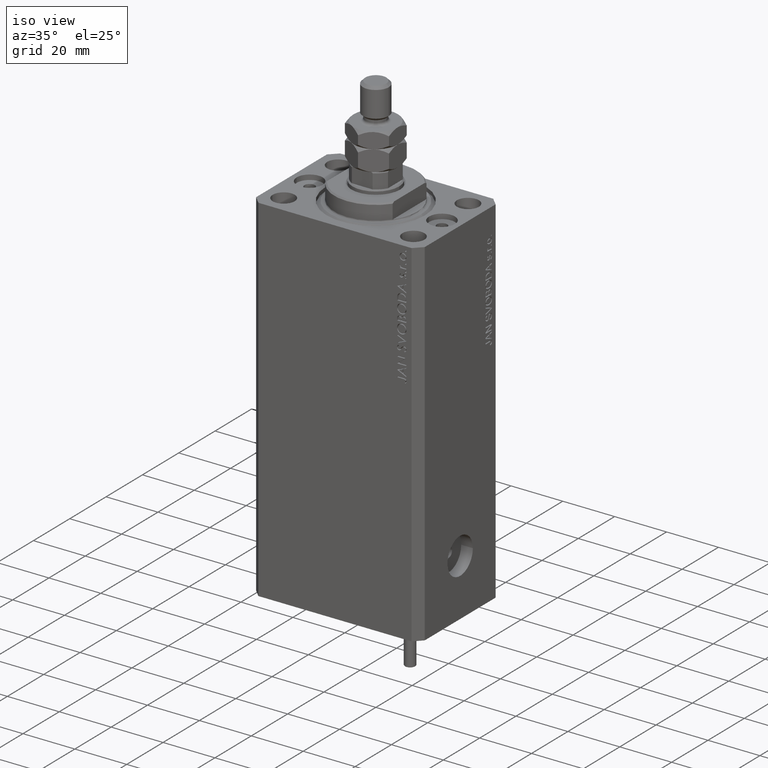
[diagram: clean part render]
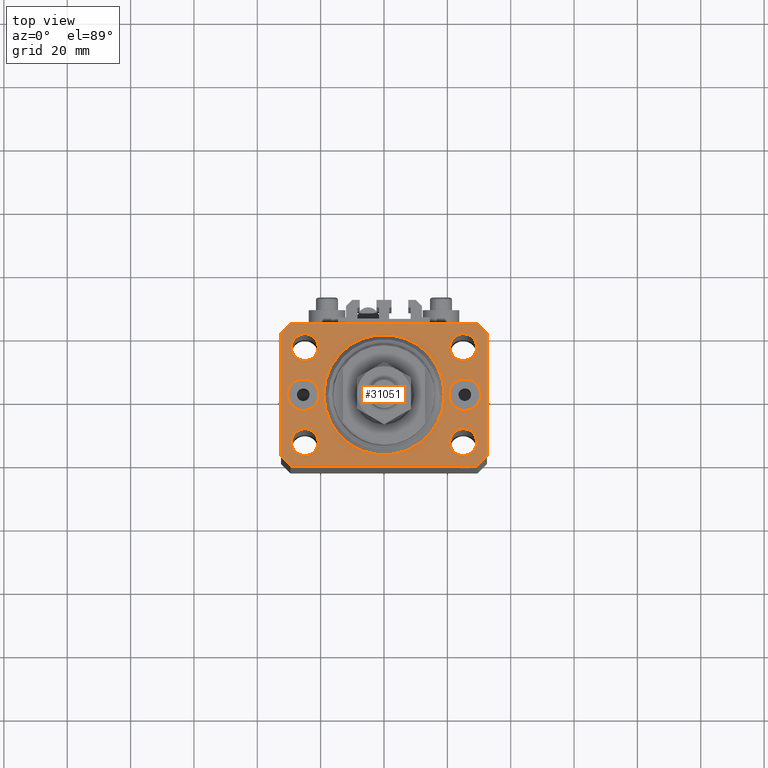
[diagram: tour spotlight — one face highlighted and labeled with its STEP entity id]
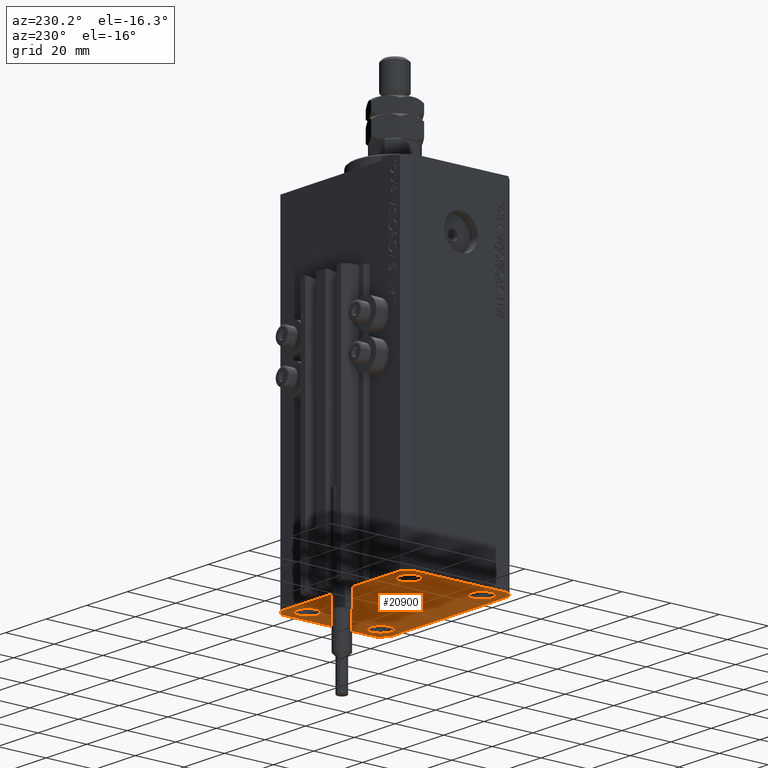
[diagram: tour spotlight — one face highlighted and labeled with its STEP entity id]
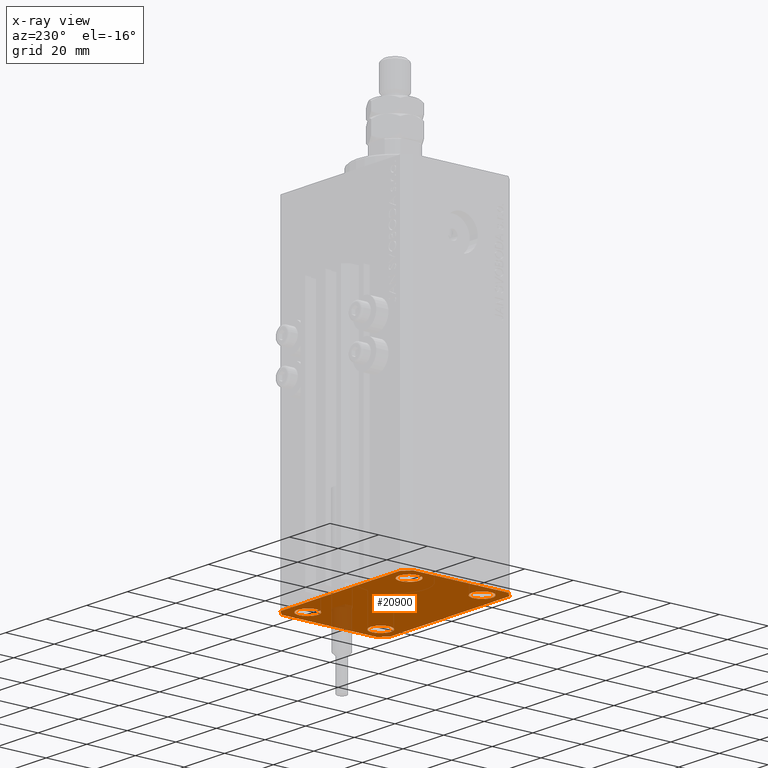
[diagram: x-ray of the same camera — body ghosted, this tour face saturated]
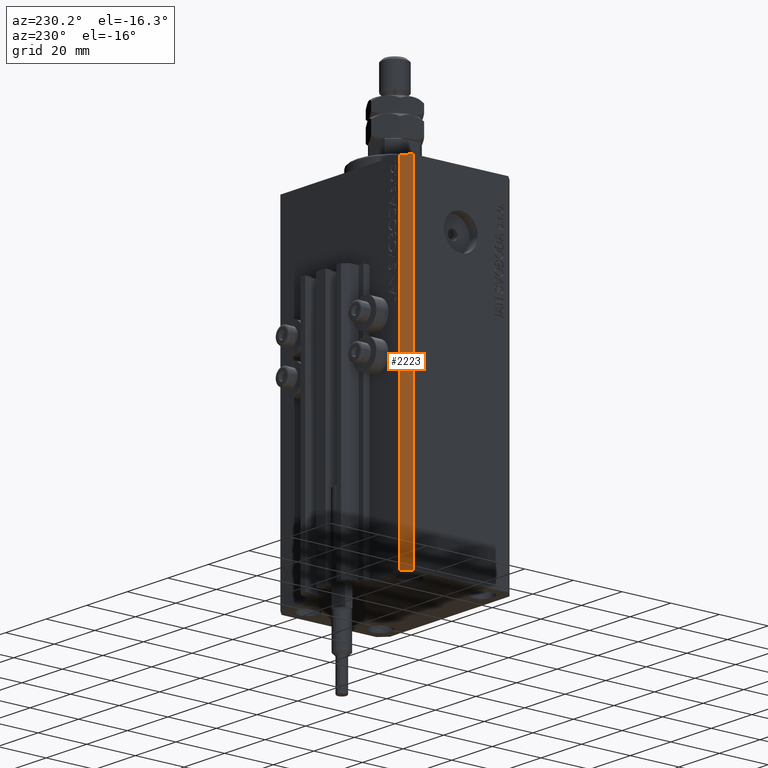
[diagram: tour spotlight — one face highlighted and labeled with its STEP entity id]
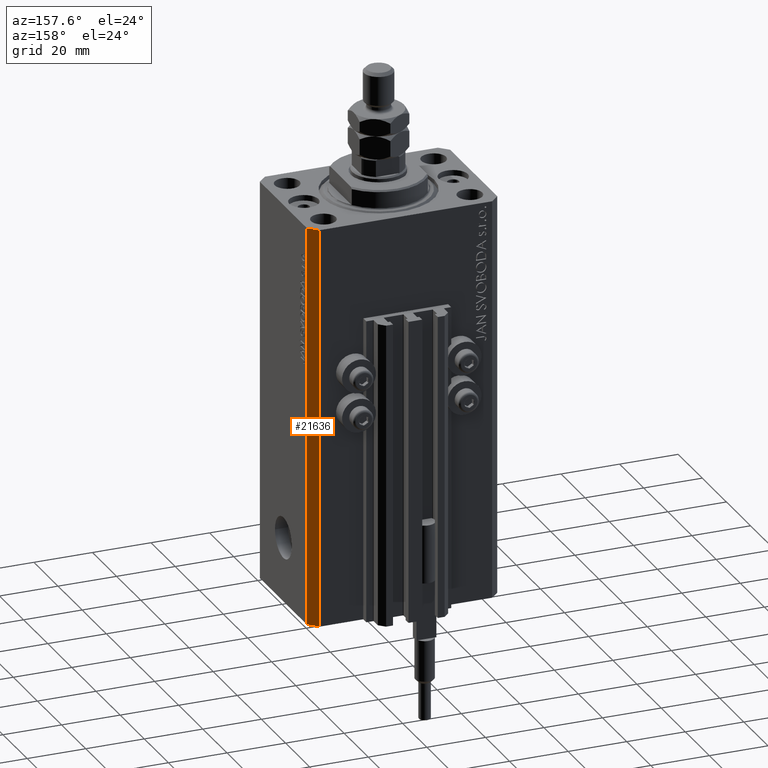
[diagram: tour spotlight — one face highlighted and labeled with its STEP entity id]
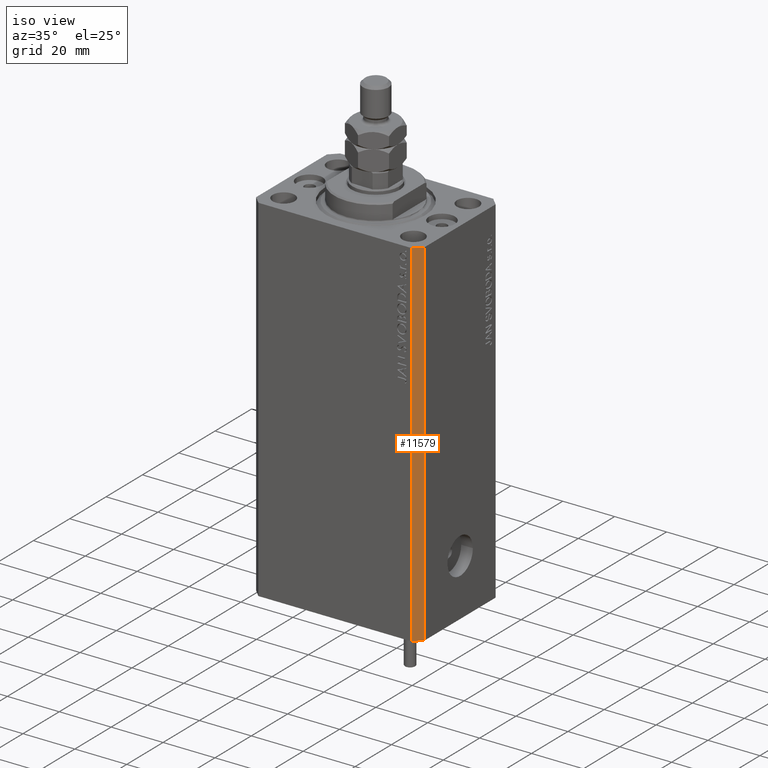
[diagram: tour spotlight — one face highlighted and labeled with its STEP entity id]
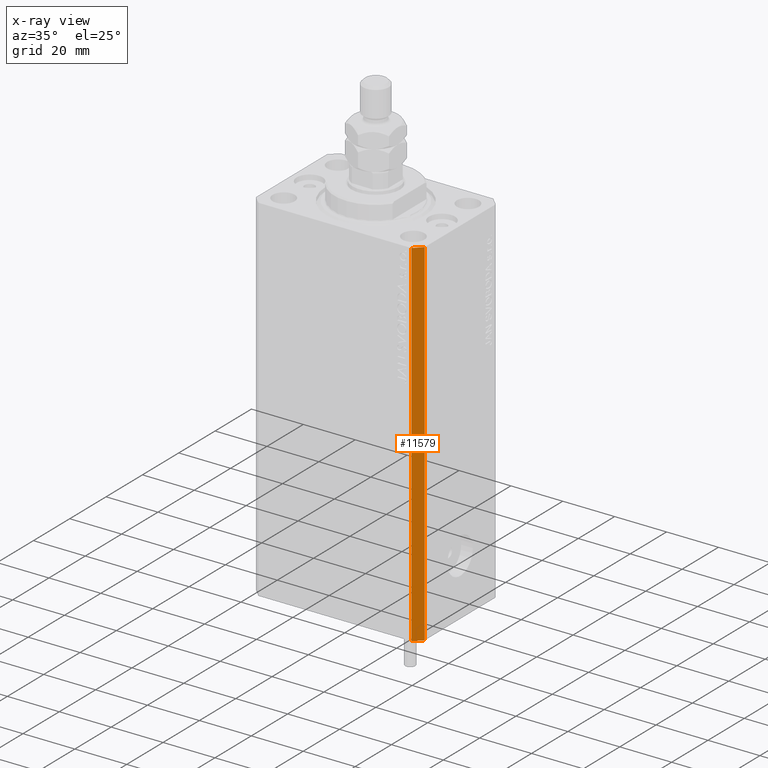
[diagram: x-ray of the same camera — body ghosted, this tour face saturated]
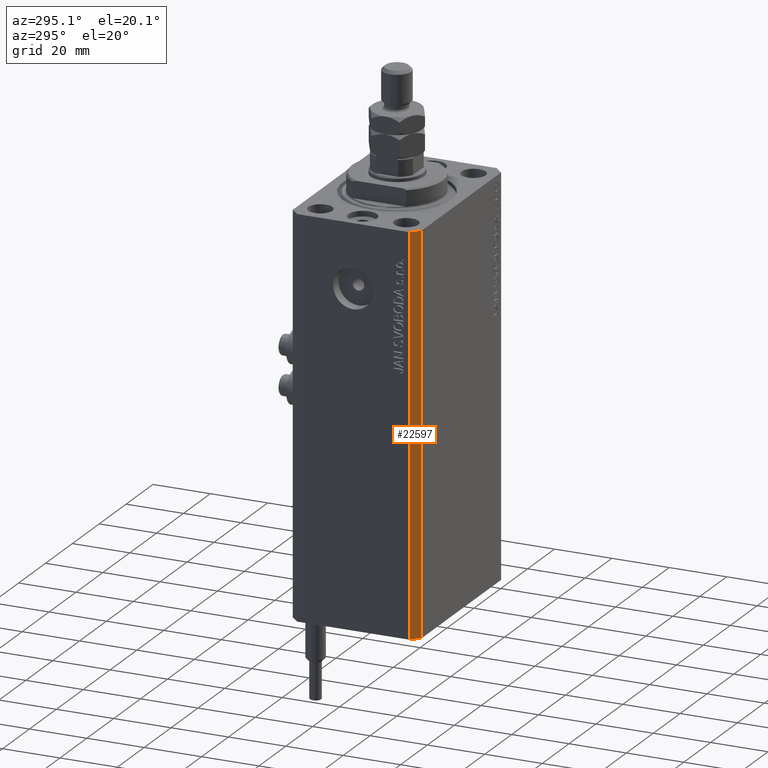
[diagram: tour spotlight — one face highlighted and labeled with its STEP entity id]
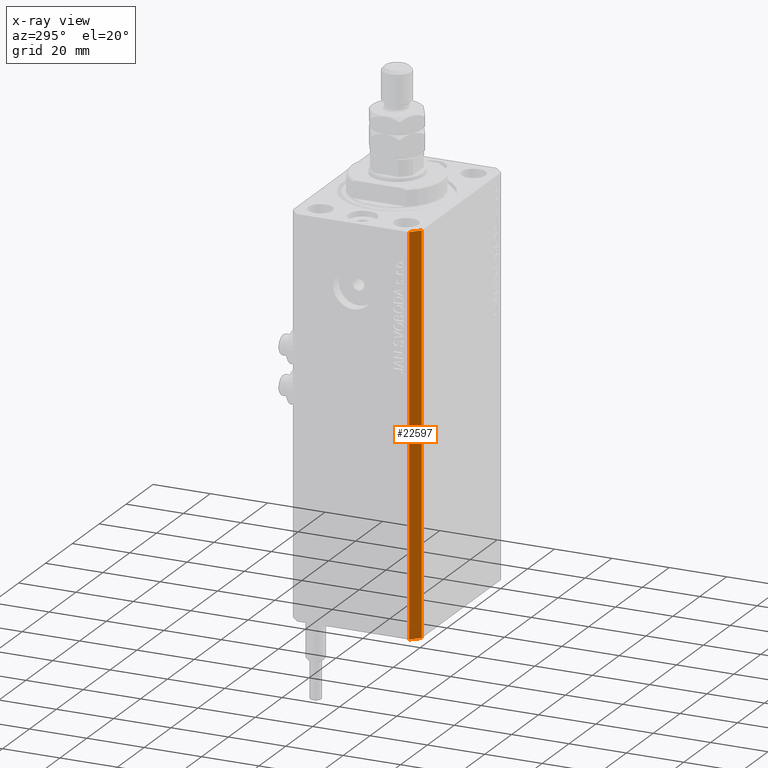
[diagram: x-ray of the same camera — body ghosted, this tour face saturated]
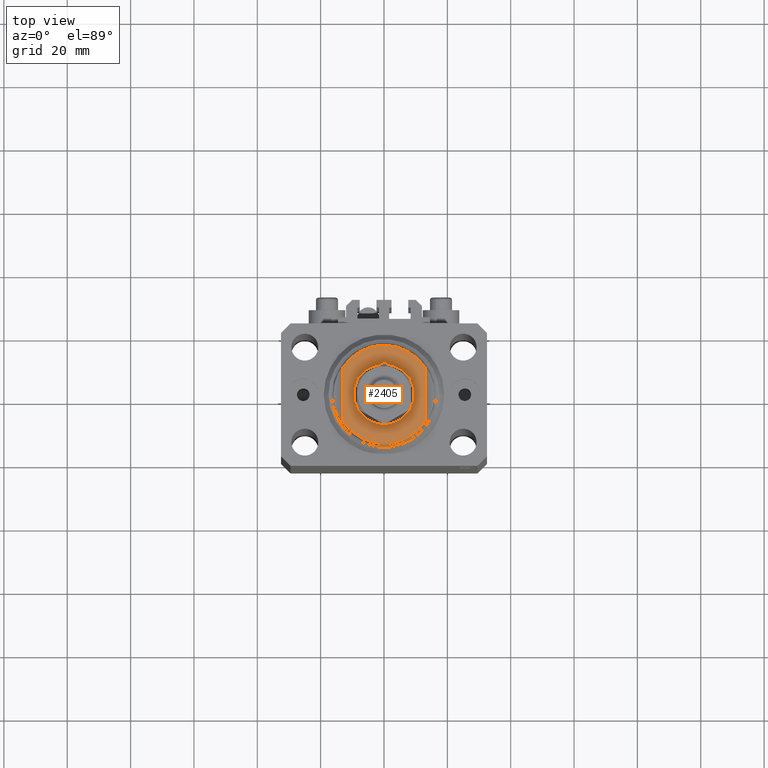
[diagram: tour spotlight — one face highlighted and labeled with its STEP entity id]
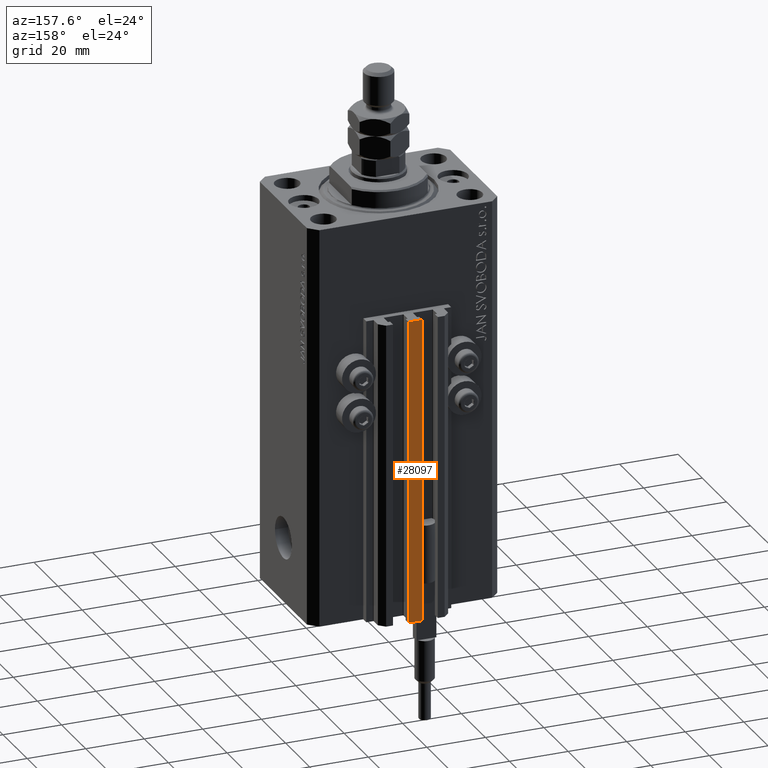
[diagram: tour spotlight — one face highlighted and labeled with its STEP entity id]
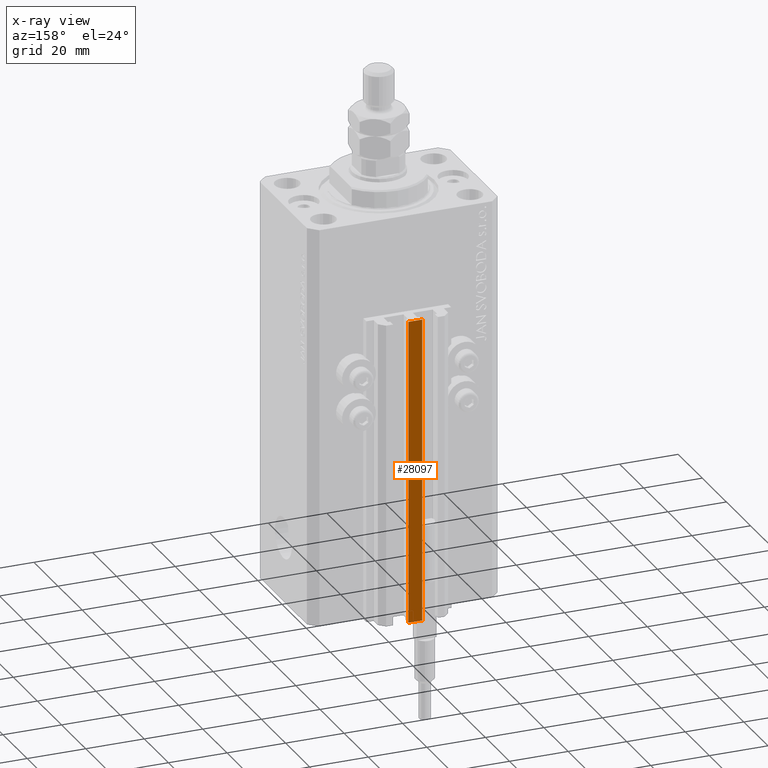
[diagram: x-ray of the same camera — body ghosted, this tour face saturated]
A machine part: a face-by-face anatomy tour. The part has 1108 B-rep faces; the first image is the clean iso view, then the 8 largest visible faces are spotlighted one at a time (largest first), each with its STEP entity span.

Face 1 — top view, entity #31051. In plain terms, the highlighted planar face has unit normal (0, 0, 1).
Definition (entity closure, byte-faithful):
#189 = DIRECTION ( 'NONE',  ( 0.000000000000000000, 0.000000000000000000, 1.000000000000000000 ) ) ;
#383 = CARTESIAN_POINT ( 'NONE',  ( -29.49999999999650413, -22.49999999999949907, 0.000000000000000000 ) ) ;
#610 = VECTOR ( 'NONE', #29525, 1000.000000000000114 ) ;
#621 = DIRECTION ( 'NONE',  ( 1.000000000000000000, 1.176083712526788232E-16, 0.000000000000000000 ) ) ;
#838 = EDGE_CURVE ( 'NONE', #27221, #9480, #31394, .T. ) ;
#1258 = DIRECTION ( 'NONE',  ( 1.000000000000000000, 0.000000000000000000, 0.000000000000000000 ) ) ;
#1287 = DIRECTION ( 'NONE',  ( 1.000000000000000000, 0.000000000000000000, 0.000000000000000000 ) ) ;
#1713 = ORIENTED_EDGE ( 'NONE', *, *, #28852, .F. ) ;
#1958 = VERTEX_POINT ( 'NONE', #28107 ) ;
#2259 = AXIS2_PLACEMENT_3D ( 'NONE', #25697, #13675, #17689 ) ;
#2520 = DIRECTION ( 'NONE',  ( 1.000000000000000000, 0.000000000000000000, 0.000000000000000000 ) ) ;
#2736 = VERTEX_POINT ( 'NONE', #9949 ) ;
#2808 = EDGE_LOOP ( 'NONE', ( #31151, #34862 ) ) ;
#2921 = ORIENTED_EDGE ( 'NONE', *, *, #42119, .T. ) ;
#3221 = CARTESIAN_POINT ( 'NONE',  ( -29.49999999999650413, 22.49999999999949907, 0.000000000000000000 ) ) ;
#3476 = CARTESIAN_POINT ( 'NONE',  ( 24.99999999999999289, -15.00000000000000355, 0.000000000000000000 ) ) ;
#3515 = ORIENTED_EDGE ( 'NONE', *, *, #48757, .T. ) ;
#3546 = CARTESIAN_POINT ( 'NONE',  ( 25.50000000000000000, 0.000000000000000000, 0.000000000000000000 ) ) ;
#3674 = DIRECTION ( 'NONE',  ( 1.334402673828349134E-14, 1.000000000000000000, 0.000000000000000000 ) ) ;
#3765 = EDGE_LOOP ( 'NONE', ( #37504, #30934 ) ) ;
#3918 = EDGE_CURVE ( 'NONE', #15293, #41543, #42283, .T. ) ;
#4507 = EDGE_CURVE ( 'NONE', #1958, #25330, #44619, .T. ) ;
#4834 = CARTESIAN_POINT ( 'NONE',  ( -25.00000000000000000, 14.99999999999999645, 0.000000000000000000 ) ) ;
#4865 = CARTESIAN_POINT ( 'NONE',  ( 0.000000000000000000, 0.000000000000000000, 0.000000000000000000 ) ) ;
#4903 = EDGE_CURVE ( 'NONE', #9480, #27221, #23012, .T. ) ;
#4968 = ORIENTED_EDGE ( 'NONE', *, *, #38551, .F. ) ;
#5123 = EDGE_CURVE ( 'NONE', #35181, #14126, #41426, .T. ) ;
#5236 = CARTESIAN_POINT ( 'NONE',  ( -19.00000000000000000, 2.326828918379970970E-15, 0.000000000000000000 ) ) ;
#5612 = PLANE ( 'NONE',  #34331 ) ;
#6007 = DIRECTION ( 'NONE',  ( 0.000000000000000000, 0.000000000000000000, 1.000000000000000000 ) ) ;
#7675 = CARTESIAN_POINT ( 'NONE',  ( -20.74999999995962341, -15.00000000000000355, 0.000000000000000000 ) ) ;
#7776 = ORIENTED_EDGE ( 'NONE', *, *, #17165, .T. ) ;
#8199 = ORIENTED_EDGE ( 'NONE', *, *, #15398, .T. ) ;
#8420 = DIRECTION ( 'NONE',  ( 1.000000000000000000, 0.000000000000000000, 0.000000000000000000 ) ) ;
#8459 = CIRCLE ( 'NONE', #46120, 4.250000000040370374 ) ;
#8583 = ORIENTED_EDGE ( 'NONE', *, *, #3918, .F. ) ;
#8604 = LINE ( 'NONE', #383, #42707 ) ;
#8614 = FACE_BOUND ( 'NONE', #22315, .T. ) ;
#9046 = CIRCLE ( 'NONE', #20262, 4.249999999957291053 ) ;
#9383 = CIRCLE ( 'NONE', #42213, 4.250000000021375790 ) ;
#9415 = CIRCLE ( 'NONE', #2259, 19.00000000000000000 ) ;
#9480 = VERTEX_POINT ( 'NONE', #30902 ) ;
#9516 = CARTESIAN_POINT ( 'NONE',  ( -24.99999999999999289, -15.00000000000000355, 0.000000000000000000 ) ) ;
#9792 = CARTESIAN_POINT ( 'NONE',  ( -20.49999999999665690, 0.000000000000000000, 0.000000000000000000 ) ) ;
#9949 = CARTESIAN_POINT ( 'NONE',  ( -20.74999999997862687, 14.99999999999999645, 0.000000000000000000 ) ) ;
#10469 = CARTESIAN_POINT ( 'NONE',  ( 32.49999999999651124, -19.49999999999949196, 0.000000000000000000 ) ) ;
#10800 = EDGE_LOOP ( 'NONE', ( #8583, #1713 ) ) ;
#11676 = LINE ( 'NONE', #14946, #46021 ) ;
#11705 = CARTESIAN_POINT ( 'NONE',  ( 24.99999999999999289, -15.00000000000000355, 0.000000000000000000 ) ) ;
#11720 = DIRECTION ( 'NONE',  ( 0.000000000000000000, 0.000000000000000000, 1.000000000000000000 ) ) ;
#11785 = DIRECTION ( 'NONE',  ( 0.000000000000000000, -1.000000000000000000, 0.000000000000000000 ) ) ;
#12106 = VECTOR ( 'NONE', #12500, 1000.000000000000114 ) ;
#12358 = ORIENTED_EDGE ( 'NONE', *, *, #22949, .T. ) ;
#12413 = DIRECTION ( 'NONE',  ( 1.000000000000000000, 0.000000000000000000, 0.000000000000000000 ) ) ;
#12500 = DIRECTION ( 'NONE',  ( 0.7071067811865474617, -0.7071067811865474617, 0.000000000000000000 ) ) ;
#13049 = CIRCLE ( 'NONE', #15465, 5.000000000003342215 ) ;
#13675 = DIRECTION ( 'NONE',  ( 0.000000000000000000, 0.000000000000000000, 1.000000000000000000 ) ) ;
#14126 = VERTEX_POINT ( 'NONE', #33115 ) ;
#14753 = DIRECTION ( 'NONE',  ( 1.000000000000000000, 0.000000000000000000, 0.000000000000000000 ) ) ;
#14807 = VERTEX_POINT ( 'NONE', #35953 ) ;
#14905 = CARTESIAN_POINT ( 'NONE',  ( -25.50000000000000000, 0.000000000000000000, 0.000000000000000000 ) ) ;
#14946 = CARTESIAN_POINT ( 'NONE',  ( 32.49999999999651124, -19.49999999999949196, 0.000000000000000000 ) ) ;
#14989 = EDGE_CURVE ( 'NONE', #43641, #19558, #29027, .T. ) ;
#15120 = EDGE_CURVE ( 'NONE', #2736, #47556, #20597, .T. ) ;
#15293 = VERTEX_POINT ( 'NONE', #26705 ) ;
#15398 = EDGE_CURVE ( 'NONE', #14807, #15405, #17507, .T. ) ;
#15405 = VERTEX_POINT ( 'NONE', #25267 ) ;
#15465 = AXIS2_PLACEMENT_3D ( 'NONE', #3546, #27302, #1258 ) ;
#15658 = CARTESIAN_POINT ( 'NONE',  ( -30.50000000000333955, 6.123233995740857512E-16, 0.000000000000000000 ) ) ;
#15940 = DIRECTION ( 'NONE',  ( 0.000000000000000000, 0.000000000000000000, 1.000000000000000000 ) ) ;
#16563 = CARTESIAN_POINT ( 'NONE',  ( -24.99999999999999289, -15.00000000000000355, 0.000000000000000000 ) ) ;
#17165 = EDGE_CURVE ( 'NONE', #38980, #42724, #13049, .T. ) ;
#17507 = LINE ( 'NONE', #3221, #610 ) ;
#17540 = CARTESIAN_POINT ( 'NONE',  ( 29.49999999999707967, 22.49999999999952038, 0.000000000000000000 ) ) ;
#17689 = DIRECTION ( 'NONE',  ( 1.000000000000000000, 0.000000000000000000, 0.000000000000000000 ) ) ;
#17943 = ORIENTED_EDGE ( 'NONE', *, *, #21328, .T. ) ;
#18210 = ORIENTED_EDGE ( 'NONE', *, *, #41380, .T. ) ;
#19011 = ORIENTED_EDGE ( 'NONE', *, *, #23781, .F. ) ;
#19244 = AXIS2_PLACEMENT_3D ( 'NONE', #36318, #6007, #21292 ) ;
#19558 = VERTEX_POINT ( 'NONE', #15658 ) ;
#19715 = DIRECTION ( 'NONE',  ( 1.000000000000000000, 0.000000000000000000, 0.000000000000000000 ) ) ;
#20153 = DIRECTION ( 'NONE',  ( 0.000000000000000000, 0.000000000000000000, 1.000000000000000000 ) ) ;
#20171 = LINE ( 'NONE', #34718, #38145 ) ;
#20262 = AXIS2_PLACEMENT_3D ( 'NONE', #30982, #189, #8420 ) ;
#20398 = FACE_BOUND ( 'NONE', #3765, .T. ) ;
#20597 = CIRCLE ( 'NONE', #38255, 4.250000000021375790 ) ;
#20667 = AXIS2_PLACEMENT_3D ( 'NONE', #47005, #15940, #12413 ) ;
#20953 = ORIENTED_EDGE ( 'NONE', *, *, #35714, .T. ) ;
#21292 = DIRECTION ( 'NONE',  ( 1.000000000000000000, 0.000000000000000000, 0.000000000000000000 ) ) ;
#21328 = EDGE_CURVE ( 'NONE', #27777, #48203, #11676, .T. ) ;
#22053 = DIRECTION ( 'NONE',  ( -1.000000000000000000, -3.528251137580330676E-16, 0.000000000000000000 ) ) ;
#22315 = EDGE_LOOP ( 'NONE', ( #19011, #35901 ) ) ;
#22505 = DIRECTION ( 'NONE',  ( 1.000000000000000000, 0.000000000000000000, 0.000000000000000000 ) ) ;
#22949 = EDGE_CURVE ( 'NONE', #48203, #23727, #33867, .T. ) ;
#23012 = CIRCLE ( 'NONE', #24587, 4.249999999976314058 ) ;
#23727 = VERTEX_POINT ( 'NONE', #37098 ) ;
#23781 = EDGE_CURVE ( 'NONE', #25330, #1958, #8459, .T. ) ;
#23909 = FACE_BOUND ( 'NONE', #10800, .T. ) ;
#24406 = EDGE_LOOP ( 'NONE', ( #39493, #7776 ) ) ;
#24587 = AXIS2_PLACEMENT_3D ( 'NONE', #11705, #38518, #22505 ) ;
#25198 = ORIENTED_EDGE ( 'NONE', *, *, #28340, .F. ) ;
#25267 = CARTESIAN_POINT ( 'NONE',  ( -32.49999999999650413, 19.49999999999949907, 0.000000000000000000 ) ) ;
#25304 = EDGE_CURVE ( 'NONE', #33597, #27777, #20171, .T. ) ;
#25330 = VERTEX_POINT ( 'NONE', #7675 ) ;
#25697 = CARTESIAN_POINT ( 'NONE',  ( 0.000000000000000000, 0.000000000000000000, 0.000000000000000000 ) ) ;
#26212 = CARTESIAN_POINT ( 'NONE',  ( 30.50000000000333955, 0.000000000000000000, 0.000000000000000000 ) ) ;
#26246 = AXIS2_PLACEMENT_3D ( 'NONE', #38754, #35718, #19715 ) ;
#26387 = DIRECTION ( 'NONE',  ( 0.000000000000000000, -0.000000000000000000, -1.000000000000000000 ) ) ;
#26594 = CARTESIAN_POINT ( 'NONE',  ( 32.49999999999702993, 19.49999999999945999, 0.000000000000000000 ) ) ;
#26632 = AXIS2_PLACEMENT_3D ( 'NONE', #3476, #11720, #14753 ) ;
#26639 = AXIS2_PLACEMENT_3D ( 'NONE', #14905, #38198, #41964 ) ;
#26705 = CARTESIAN_POINT ( 'NONE',  ( 19.00000000000000000, 0.000000000000000000, 0.000000000000000000 ) ) ;
#26955 = CARTESIAN_POINT ( 'NONE',  ( 20.49999999999665690, 6.123233995740857512E-16, 0.000000000000000000 ) ) ;
#27221 = VERTEX_POINT ( 'NONE', #29072 ) ;
#27302 = DIRECTION ( 'NONE',  ( 0.000000000000000000, -0.000000000000000000, -1.000000000000000000 ) ) ;
#27777 = VERTEX_POINT ( 'NONE', #10469 ) ;
#27904 = VECTOR ( 'NONE', #22053, 1000.000000000000000 ) ;
#27988 = CARTESIAN_POINT ( 'NONE',  ( -29.25000000002137668, 14.99999999999999645, 0.000000000000000000 ) ) ;
#28107 = CARTESIAN_POINT ( 'NONE',  ( -29.25000000004036593, -15.00000000000000355, 0.000000000000000000 ) ) ;
#28340 = EDGE_CURVE ( 'NONE', #47556, #2736, #9383, .T. ) ;
#28842 = EDGE_LOOP ( 'NONE', ( #47507, #4968 ) ) ;
#28852 = EDGE_CURVE ( 'NONE', #41543, #15293, #9415, .T. ) ;
#29027 = CIRCLE ( 'NONE', #26639, 5.000000000003342215 ) ;
#29072 = CARTESIAN_POINT ( 'NONE',  ( 29.24999999997631051, -15.00000000000000355, 0.000000000000000000 ) ) ;
#29206 = ORIENTED_EDGE ( 'NONE', *, *, #25304, .T. ) ;
#29260 = VECTOR ( 'NONE', #41899, 1000.000000000000000 ) ;
#29525 = DIRECTION ( 'NONE',  ( -0.7071067811865474617, -0.7071067811865474617, 0.000000000000000000 ) ) ;
#29693 = ORIENTED_EDGE ( 'NONE', *, *, #15120, .F. ) ;
#30902 = CARTESIAN_POINT ( 'NONE',  ( 20.75000000002367884, -15.00000000000000355, 0.000000000000000000 ) ) ;
#30934 = ORIENTED_EDGE ( 'NONE', *, *, #4903, .F. ) ;
#30982 = CARTESIAN_POINT ( 'NONE',  ( 25.00000000000000000, 14.99999999999999289, 0.000000000000000000 ) ) ;
#31051 = ADVANCED_FACE ( 'NONE', ( #36178, #31901, #39686, #20398, #8614, #23909, #39197, #43458 ), #5612, .T. ) ;
#31096 = CIRCLE ( 'NONE', #35110, 5.000000000003342215 ) ;
#31151 = ORIENTED_EDGE ( 'NONE', *, *, #48524, .F. ) ;
#31218 = EDGE_CURVE ( 'NONE', #42724, #38980, #31096, .T. ) ;
#31394 = CIRCLE ( 'NONE', #26632, 4.249999999976314058 ) ;
#31901 = FACE_BOUND ( 'NONE', #42836, .T. ) ;
#32071 = EDGE_LOOP ( 'NONE', ( #20953, #8199, #2921, #18210, #3515, #29206, #17943, #12358 ) ) ;
#32566 = CARTESIAN_POINT ( 'NONE',  ( -25.00000000000000000, 14.99999999999999645, 0.000000000000000000 ) ) ;
#32807 = DIRECTION ( 'NONE',  ( 0.000000000000000000, 0.000000000000000000, 1.000000000000000000 ) ) ;
#33115 = CARTESIAN_POINT ( 'NONE',  ( 29.24999999995729283, 14.99999999999999289, 0.000000000000000000 ) ) ;
#33597 = VERTEX_POINT ( 'NONE', #43291 ) ;
#33727 = CARTESIAN_POINT ( 'NONE',  ( -29.49999999999650413, -22.49999999999949907, 0.000000000000000000 ) ) ;
#33867 = LINE ( 'NONE', #26594, #29260 ) ;
#34331 = AXIS2_PLACEMENT_3D ( 'NONE', #4865, #20153, #46969 ) ;
#34581 = LINE ( 'NONE', #35311, #48995 ) ;
#34718 = CARTESIAN_POINT ( 'NONE',  ( 29.49999999999650413, -22.49999999999949196, 0.000000000000000000 ) ) ;
#34862 = ORIENTED_EDGE ( 'NONE', *, *, #5123, .F. ) ;
#35110 = AXIS2_PLACEMENT_3D ( 'NONE', #45694, #26387, #49465 ) ;
#35181 = VERTEX_POINT ( 'NONE', #47483 ) ;
#35311 = CARTESIAN_POINT ( 'NONE',  ( -32.49999999999650413, 19.49999999999949907, 0.000000000000000000 ) ) ;
#35714 = EDGE_CURVE ( 'NONE', #23727, #14807, #41095, .T. ) ;
#35718 = DIRECTION ( 'NONE',  ( 0.000000000000000000, 0.000000000000000000, 1.000000000000000000 ) ) ;
#35901 = ORIENTED_EDGE ( 'NONE', *, *, #4507, .F. ) ;
#35953 = CARTESIAN_POINT ( 'NONE',  ( -29.49999999999650413, 22.49999999999949907, 0.000000000000000000 ) ) ;
#36178 = FACE_OUTER_BOUND ( 'NONE', #32071, .T. ) ;
#36318 = CARTESIAN_POINT ( 'NONE',  ( -25.50000000000000000, 0.000000000000000000, 0.000000000000000000 ) ) ;
#37098 = CARTESIAN_POINT ( 'NONE',  ( 29.49999999999707967, 22.49999999999952038, 0.000000000000000000 ) ) ;
#37504 = ORIENTED_EDGE ( 'NONE', *, *, #838, .F. ) ;
#37589 = CARTESIAN_POINT ( 'NONE',  ( 32.49999999999702993, 19.49999999999945999, 0.000000000000000000 ) ) ;
#38145 = VECTOR ( 'NONE', #39215, 1000.000000000000000 ) ;
#38198 = DIRECTION ( 'NONE',  ( 0.000000000000000000, 0.000000000000000000, 1.000000000000000000 ) ) ;
#38255 = AXIS2_PLACEMENT_3D ( 'NONE', #4834, #32807, #46937 ) ;
#38518 = DIRECTION ( 'NONE',  ( 0.000000000000000000, 0.000000000000000000, 1.000000000000000000 ) ) ;
#38551 = EDGE_CURVE ( 'NONE', #19558, #43641, #42454, .T. ) ;
#38754 = CARTESIAN_POINT ( 'NONE',  ( 25.00000000000000000, 14.99999999999999289, 0.000000000000000000 ) ) ;
#38830 = LINE ( 'NONE', #46844, #12106 ) ;
#38834 = CARTESIAN_POINT ( 'NONE',  ( -32.49999999999650413, -19.49999999999949907, 0.000000000000000000 ) ) ;
#38980 = VERTEX_POINT ( 'NONE', #26955 ) ;
#39004 = AXIS2_PLACEMENT_3D ( 'NONE', #16563, #39358, #1287 ) ;
#39197 = FACE_BOUND ( 'NONE', #28842, .T. ) ;
#39215 = DIRECTION ( 'NONE',  ( 0.7071067811865483499, 0.7071067811865466846, 0.000000000000000000 ) ) ;
#39358 = DIRECTION ( 'NONE',  ( 0.000000000000000000, 0.000000000000000000, 1.000000000000000000 ) ) ;
#39493 = ORIENTED_EDGE ( 'NONE', *, *, #31218, .T. ) ;
#39686 = FACE_BOUND ( 'NONE', #2808, .T. ) ;
#40867 = DIRECTION ( 'NONE',  ( 0.000000000000000000, 0.000000000000000000, 1.000000000000000000 ) ) ;
#41095 = LINE ( 'NONE', #17540, #27904 ) ;
#41380 = EDGE_CURVE ( 'NONE', #49444, #45017, #38830, .T. ) ;
#41426 = CIRCLE ( 'NONE', #26246, 4.249999999957291053 ) ;
#41543 = VERTEX_POINT ( 'NONE', #5236 ) ;
#41899 = DIRECTION ( 'NONE',  ( -0.7071067811865344721, 0.7071067811865606734, 0.000000000000000000 ) ) ;
#41964 = DIRECTION ( 'NONE',  ( 1.000000000000000000, 0.000000000000000000, 0.000000000000000000 ) ) ;
#42119 = EDGE_CURVE ( 'NONE', #15405, #49444, #34581, .T. ) ;
#42213 = AXIS2_PLACEMENT_3D ( 'NONE', #32566, #40867, #44630 ) ;
#42283 = CIRCLE ( 'NONE', #20667, 19.00000000000000000 ) ;
#42454 = CIRCLE ( 'NONE', #19244, 5.000000000003342215 ) ;
#42707 = VECTOR ( 'NONE', #621, 1000.000000000000000 ) ;
#42724 = VERTEX_POINT ( 'NONE', #26212 ) ;
#42836 = EDGE_LOOP ( 'NONE', ( #29693, #25198 ) ) ;
#43291 = CARTESIAN_POINT ( 'NONE',  ( 29.49999999999650413, -22.49999999999949196, 0.000000000000000000 ) ) ;
#43458 = FACE_BOUND ( 'NONE', #24406, .T. ) ;
#43641 = VERTEX_POINT ( 'NONE', #9792 ) ;
#44615 = DIRECTION ( 'NONE',  ( 0.000000000000000000, 0.000000000000000000, 1.000000000000000000 ) ) ;
#44619 = CIRCLE ( 'NONE', #39004, 4.250000000040370374 ) ;
#44630 = DIRECTION ( 'NONE',  ( 1.000000000000000000, 0.000000000000000000, 0.000000000000000000 ) ) ;
#45017 = VERTEX_POINT ( 'NONE', #33727 ) ;
#45694 = CARTESIAN_POINT ( 'NONE',  ( 25.50000000000000000, 0.000000000000000000, 0.000000000000000000 ) ) ;
#46021 = VECTOR ( 'NONE', #3674, 1000.000000000000000 ) ;
#46120 = AXIS2_PLACEMENT_3D ( 'NONE', #9516, #44615, #2520 ) ;
#46844 = CARTESIAN_POINT ( 'NONE',  ( -32.49999999999650413, -19.49999999999949907, 0.000000000000000000 ) ) ;
#46937 = DIRECTION ( 'NONE',  ( 1.000000000000000000, 0.000000000000000000, 0.000000000000000000 ) ) ;
#46969 = DIRECTION ( 'NONE',  ( 1.000000000000000000, 0.000000000000000000, -0.000000000000000000 ) ) ;
#47005 = CARTESIAN_POINT ( 'NONE',  ( 0.000000000000000000, 0.000000000000000000, 0.000000000000000000 ) ) ;
#47483 = CARTESIAN_POINT ( 'NONE',  ( 20.75000000004271072, 14.99999999999999289, 0.000000000000000000 ) ) ;
#47507 = ORIENTED_EDGE ( 'NONE', *, *, #14989, .F. ) ;
#47556 = VERTEX_POINT ( 'NONE', #27988 ) ;
#48203 = VERTEX_POINT ( 'NONE', #37589 ) ;
#48524 = EDGE_CURVE ( 'NONE', #14126, #35181, #9046, .T. ) ;
#48757 = EDGE_CURVE ( 'NONE', #45017, #33597, #8604, .T. ) ;
#48995 = VECTOR ( 'NONE', #11785, 1000.000000000000000 ) ;
#49444 = VERTEX_POINT ( 'NONE', #38834 ) ;
#49465 = DIRECTION ( 'NONE',  ( 1.000000000000000000, 0.000000000000000000, 0.000000000000000000 ) ) ;

Face 2 — auxiliary view, entity #20900. An x-ray twin of the same camera follows (body ghosted, this face saturated) — the face is partly hidden behind the body. In plain terms, the highlighted planar face has unit normal (0, 0, 1).
Definition (entity closure, byte-faithful):
#8 = EDGE_CURVE ( 'NONE', #32897, #41326, #42591, .T. ) ;
#1068 = FACE_BOUND ( 'NONE', #39369, .T. ) ;
#1554 = EDGE_CURVE ( 'NONE', #19201, #22694, #4208, .T. ) ;
#1558 = FACE_BOUND ( 'NONE', #27525, .T. ) ;
#2029 = CARTESIAN_POINT ( 'NONE',  ( 29.49999999999707967, 22.49999999999952038, -137.0000000000000000 ) ) ;
#2606 = ORIENTED_EDGE ( 'NONE', *, *, #14482, .F. ) ;
#4076 = VERTEX_POINT ( 'NONE', #10400 ) ;
#4164 = ORIENTED_EDGE ( 'NONE', *, *, #24815, .F. ) ;
#4208 = CIRCLE ( 'NONE', #6638, 4.250000000021375790 ) ;
#4309 = CARTESIAN_POINT ( 'NONE',  ( -25.00000000000000000, 14.99999999999999645, -137.0000000000000000 ) ) ;
#4583 = CARTESIAN_POINT ( 'NONE',  ( -29.25000000002137668, 14.99999999999999645, -137.0000000000000000 ) ) ;
#4771 = DIRECTION ( 'NONE',  ( 1.000000000000000000, 0.000000000000000000, 0.000000000000000000 ) ) ;
#5056 = DIRECTION ( 'NONE',  ( 0.000000000000000000, 0.000000000000000000, 1.000000000000000000 ) ) ;
#5177 = AXIS2_PLACEMENT_3D ( 'NONE', #43896, #5056, #31598 ) ;
#5407 = VERTEX_POINT ( 'NONE', #43196 ) ;
#5493 = VECTOR ( 'NONE', #46625, 1000.000000000000000 ) ;
#6593 = EDGE_CURVE ( 'NONE', #24467, #43881, #17490, .T. ) ;
#6638 = AXIS2_PLACEMENT_3D ( 'NONE', #4309, #47375, #23822 ) ;
#6717 = VERTEX_POINT ( 'NONE', #20086 ) ;
#6873 = CARTESIAN_POINT ( 'NONE',  ( 24.99999999999999289, -15.00000000000000355, -137.0000000000000000 ) ) ;
#7338 = CARTESIAN_POINT ( 'NONE',  ( 29.49999999999650413, -22.49999999999949196, -137.0000000000000000 ) ) ;
#8520 = CARTESIAN_POINT ( 'NONE',  ( -24.99999999999999289, -15.00000000000000355, -137.0000000000000000 ) ) ;
#8978 = CARTESIAN_POINT ( 'NONE',  ( 20.75000000002367884, -15.00000000000000355, -137.0000000000000000 ) ) ;
#9301 = PLANE ( 'NONE',  #5177 ) ;
#9641 = ORIENTED_EDGE ( 'NONE', *, *, #34582, .F. ) ;
#10400 = CARTESIAN_POINT ( 'NONE',  ( 32.49999999999702993, 19.49999999999945999, -137.0000000000000000 ) ) ;
#10760 = LINE ( 'NONE', #30774, #42315 ) ;
#11393 = AXIS2_PLACEMENT_3D ( 'NONE', #16443, #47265, #19720 ) ;
#11517 = EDGE_LOOP ( 'NONE', ( #37549, #33194 ) ) ;
#11592 = DIRECTION ( 'NONE',  ( 1.000000000000000000, 0.000000000000000000, 0.000000000000000000 ) ) ;
#11882 = VERTEX_POINT ( 'NONE', #15700 ) ;
#11949 = ORIENTED_EDGE ( 'NONE', *, *, #6593, .F. ) ;
#12291 = ORIENTED_EDGE ( 'NONE', *, *, #40621, .F. ) ;
#14205 = VERTEX_POINT ( 'NONE', #25607 ) ;
#14482 = EDGE_CURVE ( 'NONE', #40296, #6717, #26779, .T. ) ;
#14779 = DIRECTION ( 'NONE',  ( -1.000000000000000000, -3.528251137580330676E-16, 0.000000000000000000 ) ) ;
#14867 = LINE ( 'NONE', #7338, #39084 ) ;
#15604 = EDGE_CURVE ( 'NONE', #5407, #30388, #31806, .T. ) ;
#15700 = CARTESIAN_POINT ( 'NONE',  ( 29.49999999999650413, -22.49999999999949196, -137.0000000000000000 ) ) ;
#15897 = DIRECTION ( 'NONE',  ( 0.7071067811865474617, -0.7071067811865474617, 0.000000000000000000 ) ) ;
#16332 = FACE_OUTER_BOUND ( 'NONE', #39682, .T. ) ;
#16443 = CARTESIAN_POINT ( 'NONE',  ( 25.00000000000000000, 14.99999999999999289, -137.0000000000000000 ) ) ;
#16561 = VERTEX_POINT ( 'NONE', #23432 ) ;
#16936 = DIRECTION ( 'NONE',  ( -0.000000000000000000, -0.000000000000000000, -1.000000000000000000 ) ) ;
#16998 = LINE ( 'NONE', #20760, #44935 ) ;
#17178 = VERTEX_POINT ( 'NONE', #19563 ) ;
#17226 = DIRECTION ( 'NONE',  ( -0.000000000000000000, -0.000000000000000000, -1.000000000000000000 ) ) ;
#17237 = AXIS2_PLACEMENT_3D ( 'NONE', #23736, #23263, #46556 ) ;
#17490 = CIRCLE ( 'NONE', #37496, 4.249999999976314058 ) ;
#17986 = DIRECTION ( 'NONE',  ( 1.000000000000000000, 0.000000000000000000, 0.000000000000000000 ) ) ;
#18769 = VECTOR ( 'NONE', #15897, 1000.000000000000114 ) ;
#19135 = LINE ( 'NONE', #22897, #38112 ) ;
#19201 = VERTEX_POINT ( 'NONE', #47270 ) ;
#19507 = EDGE_CURVE ( 'NONE', #6717, #17178, #42470, .T. ) ;
#19563 = CARTESIAN_POINT ( 'NONE',  ( -29.49999999999650413, -22.49999999999949907, -137.0000000000000000 ) ) ;
#19670 = CARTESIAN_POINT ( 'NONE',  ( -32.49999999999650413, -19.49999999999949907, -137.0000000000000000 ) ) ;
#19720 = DIRECTION ( 'NONE',  ( 1.000000000000000000, 0.000000000000000000, 0.000000000000000000 ) ) ;
#20086 = CARTESIAN_POINT ( 'NONE',  ( -32.49999999999650413, -19.49999999999949907, -137.0000000000000000 ) ) ;
#20550 = DIRECTION ( 'NONE',  ( -0.000000000000000000, -0.000000000000000000, -1.000000000000000000 ) ) ;
#20760 = CARTESIAN_POINT ( 'NONE',  ( 32.49999999999651124, -19.49999999999949196, -137.0000000000000000 ) ) ;
#20900 = ADVANCED_FACE ( 'NONE', ( #40136, #1068, #24347, #1558, #16332 ), #9301, .F. ) ;
#21001 = ORIENTED_EDGE ( 'NONE', *, *, #1554, .F. ) ;
#21825 = VECTOR ( 'NONE', #42081, 1000.000000000000000 ) ;
#21967 = EDGE_CURVE ( 'NONE', #41326, #32897, #47645, .T. ) ;
#21971 = CARTESIAN_POINT ( 'NONE',  ( 29.24999999997631051, -15.00000000000000355, -137.0000000000000000 ) ) ;
#22085 = CARTESIAN_POINT ( 'NONE',  ( 20.75000000004271072, 14.99999999999999289, -137.0000000000000000 ) ) ;
#22694 = VERTEX_POINT ( 'NONE', #4583 ) ;
#22879 = DIRECTION ( 'NONE',  ( 0.7071067811865483499, 0.7071067811865466846, 0.000000000000000000 ) ) ;
#22897 = CARTESIAN_POINT ( 'NONE',  ( -29.49999999999650413, -22.49999999999949907, -137.0000000000000000 ) ) ;
#23263 = DIRECTION ( 'NONE',  ( -0.000000000000000000, -0.000000000000000000, -1.000000000000000000 ) ) ;
#23432 = CARTESIAN_POINT ( 'NONE',  ( -29.49999999999650413, 22.49999999999949907, -137.0000000000000000 ) ) ;
#23736 = CARTESIAN_POINT ( 'NONE',  ( 25.00000000000000000, 14.99999999999999289, -137.0000000000000000 ) ) ;
#23822 = DIRECTION ( 'NONE',  ( 1.000000000000000000, 0.000000000000000000, 0.000000000000000000 ) ) ;
#24347 = FACE_BOUND ( 'NONE', #11517, .T. ) ;
#24467 = VERTEX_POINT ( 'NONE', #21971 ) ;
#24815 = EDGE_CURVE ( 'NONE', #17178, #11882, #19135, .T. ) ;
#25607 = CARTESIAN_POINT ( 'NONE',  ( 32.49999999999651124, -19.49999999999949196, -137.0000000000000000 ) ) ;
#25665 = DIRECTION ( 'NONE',  ( 1.000000000000000000, 0.000000000000000000, 0.000000000000000000 ) ) ;
#25757 = ORIENTED_EDGE ( 'NONE', *, *, #15604, .F. ) ;
#25979 = EDGE_CURVE ( 'NONE', #30388, #5407, #39725, .T. ) ;
#26319 = ORIENTED_EDGE ( 'NONE', *, *, #30277, .F. ) ;
#26391 = EDGE_CURVE ( 'NONE', #22694, #19201, #43000, .T. ) ;
#26779 = LINE ( 'NONE', #38319, #21825 ) ;
#26953 = ORIENTED_EDGE ( 'NONE', *, *, #34283, .F. ) ;
#27364 = AXIS2_PLACEMENT_3D ( 'NONE', #6873, #29173, #25665 ) ;
#27525 = EDGE_LOOP ( 'NONE', ( #21001, #37042 ) ) ;
#28326 = VERTEX_POINT ( 'NONE', #2029 ) ;
#28910 = CARTESIAN_POINT ( 'NONE',  ( 29.24999999995729283, 14.99999999999999289, -137.0000000000000000 ) ) ;
#29173 = DIRECTION ( 'NONE',  ( -0.000000000000000000, -0.000000000000000000, -1.000000000000000000 ) ) ;
#29331 = AXIS2_PLACEMENT_3D ( 'NONE', #8520, #20550, #4771 ) ;
#29899 = DIRECTION ( 'NONE',  ( -0.000000000000000000, -0.000000000000000000, -1.000000000000000000 ) ) ;
#30277 = EDGE_CURVE ( 'NONE', #11882, #14205, #14867, .T. ) ;
#30388 = VERTEX_POINT ( 'NONE', #47393 ) ;
#30774 = CARTESIAN_POINT ( 'NONE',  ( 29.49999999999707967, 22.49999999999952038, -137.0000000000000000 ) ) ;
#31316 = LINE ( 'NONE', #47358, #5493 ) ;
#31598 = DIRECTION ( 'NONE',  ( 1.000000000000000000, 0.000000000000000000, -0.000000000000000000 ) ) ;
#31806 = CIRCLE ( 'NONE', #37430, 4.250000000040370374 ) ;
#32897 = VERTEX_POINT ( 'NONE', #28910 ) ;
#33194 = ORIENTED_EDGE ( 'NONE', *, *, #21967, .F. ) ;
#33770 = ORIENTED_EDGE ( 'NONE', *, *, #19507, .F. ) ;
#34283 = EDGE_CURVE ( 'NONE', #4076, #28326, #31316, .T. ) ;
#34582 = EDGE_CURVE ( 'NONE', #28326, #16561, #10760, .T. ) ;
#36042 = DIRECTION ( 'NONE',  ( 1.334402673828349134E-14, 1.000000000000000000, 0.000000000000000000 ) ) ;
#36651 = CARTESIAN_POINT ( 'NONE',  ( -32.49999999999650413, 19.49999999999949907, -137.0000000000000000 ) ) ;
#37042 = ORIENTED_EDGE ( 'NONE', *, *, #26391, .F. ) ;
#37430 = AXIS2_PLACEMENT_3D ( 'NONE', #43512, #16936, #43265 ) ;
#37496 = AXIS2_PLACEMENT_3D ( 'NONE', #48726, #29899, #11592 ) ;
#37549 = ORIENTED_EDGE ( 'NONE', *, *, #8, .F. ) ;
#38112 = VECTOR ( 'NONE', #38180, 1000.000000000000000 ) ;
#38180 = DIRECTION ( 'NONE',  ( 1.000000000000000000, 1.176083712526788232E-16, 0.000000000000000000 ) ) ;
#38319 = CARTESIAN_POINT ( 'NONE',  ( -32.49999999999650413, 19.49999999999949907, -137.0000000000000000 ) ) ;
#39084 = VECTOR ( 'NONE', #22879, 1000.000000000000000 ) ;
#39369 = EDGE_LOOP ( 'NONE', ( #11949, #43086 ) ) ;
#39682 = EDGE_LOOP ( 'NONE', ( #9641, #26953, #12291, #26319, #4164, #33770, #2606, #45662 ) ) ;
#39725 = CIRCLE ( 'NONE', #29331, 4.250000000040370374 ) ;
#40136 = FACE_BOUND ( 'NONE', #40302, .T. ) ;
#40296 = VERTEX_POINT ( 'NONE', #36651 ) ;
#40302 = EDGE_LOOP ( 'NONE', ( #48838, #25757 ) ) ;
#40621 = EDGE_CURVE ( 'NONE', #14205, #4076, #16998, .T. ) ;
#41029 = CIRCLE ( 'NONE', #27364, 4.249999999976314058 ) ;
#41326 = VERTEX_POINT ( 'NONE', #22085 ) ;
#41787 = VECTOR ( 'NONE', #46308, 1000.000000000000114 ) ;
#42081 = DIRECTION ( 'NONE',  ( 0.000000000000000000, -1.000000000000000000, 0.000000000000000000 ) ) ;
#42174 = AXIS2_PLACEMENT_3D ( 'NONE', #48322, #17226, #17986 ) ;
#42303 = LINE ( 'NONE', #42793, #41787 ) ;
#42315 = VECTOR ( 'NONE', #14779, 1000.000000000000000 ) ;
#42470 = LINE ( 'NONE', #19670, #18769 ) ;
#42496 = EDGE_CURVE ( 'NONE', #16561, #40296, #42303, .T. ) ;
#42591 = CIRCLE ( 'NONE', #11393, 4.249999999957291053 ) ;
#42793 = CARTESIAN_POINT ( 'NONE',  ( -29.49999999999650413, 22.49999999999949907, -137.0000000000000000 ) ) ;
#42860 = EDGE_CURVE ( 'NONE', #43881, #24467, #41029, .T. ) ;
#43000 = CIRCLE ( 'NONE', #42174, 4.250000000021375790 ) ;
#43086 = ORIENTED_EDGE ( 'NONE', *, *, #42860, .F. ) ;
#43196 = CARTESIAN_POINT ( 'NONE',  ( -29.25000000004036593, -15.00000000000000355, -137.0000000000000000 ) ) ;
#43265 = DIRECTION ( 'NONE',  ( 1.000000000000000000, 0.000000000000000000, 0.000000000000000000 ) ) ;
#43512 = CARTESIAN_POINT ( 'NONE',  ( -24.99999999999999289, -15.00000000000000355, -137.0000000000000000 ) ) ;
#43881 = VERTEX_POINT ( 'NONE', #8978 ) ;
#43896 = CARTESIAN_POINT ( 'NONE',  ( 0.000000000000000000, 0.000000000000000000, -137.0000000000000000 ) ) ;
#44935 = VECTOR ( 'NONE', #36042, 1000.000000000000000 ) ;
#45662 = ORIENTED_EDGE ( 'NONE', *, *, #42496, .F. ) ;
#46308 = DIRECTION ( 'NONE',  ( -0.7071067811865474617, -0.7071067811865474617, 0.000000000000000000 ) ) ;
#46556 = DIRECTION ( 'NONE',  ( 1.000000000000000000, 0.000000000000000000, 0.000000000000000000 ) ) ;
#46625 = DIRECTION ( 'NONE',  ( -0.7071067811865344721, 0.7071067811865606734, 0.000000000000000000 ) ) ;
#47265 = DIRECTION ( 'NONE',  ( -0.000000000000000000, -0.000000000000000000, -1.000000000000000000 ) ) ;
#47270 = CARTESIAN_POINT ( 'NONE',  ( -20.74999999997862687, 14.99999999999999645, -137.0000000000000000 ) ) ;
#47358 = CARTESIAN_POINT ( 'NONE',  ( 32.49999999999702993, 19.49999999999945999, -137.0000000000000000 ) ) ;
#47375 = DIRECTION ( 'NONE',  ( -0.000000000000000000, -0.000000000000000000, -1.000000000000000000 ) ) ;
#47393 = CARTESIAN_POINT ( 'NONE',  ( -20.74999999995962341, -15.00000000000000355, -137.0000000000000000 ) ) ;
#47645 = CIRCLE ( 'NONE', #17237, 4.249999999957291053 ) ;
#48322 = CARTESIAN_POINT ( 'NONE',  ( -25.00000000000000000, 14.99999999999999645, -137.0000000000000000 ) ) ;
#48726 = CARTESIAN_POINT ( 'NONE',  ( 24.99999999999999289, -15.00000000000000355, -137.0000000000000000 ) ) ;
#48838 = ORIENTED_EDGE ( 'NONE', *, *, #25979, .F. ) ;

Face 3 — auxiliary view, entity #2223. In plain terms, the highlighted planar face has unit normal (-0.7071, 0.7071, 0).
Definition (entity closure, byte-faithful):
#452 = ORIENTED_EDGE ( 'NONE', *, *, #25934, .T. ) ;
#610 = VECTOR ( 'NONE', #29525, 1000.000000000000114 ) ;
#663 = ORIENTED_EDGE ( 'NONE', *, *, #15398, .F. ) ;
#1327 = VECTOR ( 'NONE', #20801, 1000.000000000000000 ) ;
#2223 = ADVANCED_FACE ( 'NONE', ( #11796 ), #10815, .T. ) ;
#3221 = CARTESIAN_POINT ( 'NONE',  ( -29.49999999999650413, 22.49999999999949907, 0.000000000000000000 ) ) ;
#7063 = DIRECTION ( 'NONE',  ( -0.7071067811865474617, -0.7071067811865474617, 0.000000000000000000 ) ) ;
#7518 = ORIENTED_EDGE ( 'NONE', *, *, #18074, .F. ) ;
#8286 = LINE ( 'NONE', #24550, #1327 ) ;
#9725 = DIRECTION ( 'NONE',  ( 0.000000000000000000, 0.000000000000000000, 1.000000000000000000 ) ) ;
#10815 = PLANE ( 'NONE',  #41100 ) ;
#11064 = CARTESIAN_POINT ( 'NONE',  ( -29.49999999999650413, 22.49999999999949907, -137.0000000000000000 ) ) ;
#11796 = FACE_OUTER_BOUND ( 'NONE', #39275, .T. ) ;
#14060 = ORIENTED_EDGE ( 'NONE', *, *, #42496, .T. ) ;
#14807 = VERTEX_POINT ( 'NONE', #35953 ) ;
#15398 = EDGE_CURVE ( 'NONE', #14807, #15405, #17507, .T. ) ;
#15405 = VERTEX_POINT ( 'NONE', #25267 ) ;
#16259 = CARTESIAN_POINT ( 'NONE',  ( -29.49999999999650413, 22.49999999999949907, -137.0000000000000000 ) ) ;
#16561 = VERTEX_POINT ( 'NONE', #23432 ) ;
#17507 = LINE ( 'NONE', #3221, #610 ) ;
#18074 = EDGE_CURVE ( 'NONE', #16561, #14807, #20761, .T. ) ;
#19329 = DIRECTION ( 'NONE',  ( -0.7071067811865475727, 0.7071067811865475727, 0.000000000000000000 ) ) ;
#20761 = LINE ( 'NONE', #16259, #47440 ) ;
#20801 = DIRECTION ( 'NONE',  ( 0.000000000000000000, 0.000000000000000000, 1.000000000000000000 ) ) ;
#23432 = CARTESIAN_POINT ( 'NONE',  ( -29.49999999999650413, 22.49999999999949907, -137.0000000000000000 ) ) ;
#24550 = CARTESIAN_POINT ( 'NONE',  ( -32.49999999999650413, 19.49999999999949907, -137.0000000000000000 ) ) ;
#25267 = CARTESIAN_POINT ( 'NONE',  ( -32.49999999999650413, 19.49999999999949907, 0.000000000000000000 ) ) ;
#25934 = EDGE_CURVE ( 'NONE', #40296, #15405, #8286, .T. ) ;
#29525 = DIRECTION ( 'NONE',  ( -0.7071067811865474617, -0.7071067811865474617, 0.000000000000000000 ) ) ;
#35953 = CARTESIAN_POINT ( 'NONE',  ( -29.49999999999650413, 22.49999999999949907, 0.000000000000000000 ) ) ;
#36651 = CARTESIAN_POINT ( 'NONE',  ( -32.49999999999650413, 19.49999999999949907, -137.0000000000000000 ) ) ;
#39275 = EDGE_LOOP ( 'NONE', ( #663, #7518, #14060, #452 ) ) ;
#40296 = VERTEX_POINT ( 'NONE', #36651 ) ;
#41100 = AXIS2_PLACEMENT_3D ( 'NONE', #11064, #19329, #7063 ) ;
#41787 = VECTOR ( 'NONE', #46308, 1000.000000000000114 ) ;
#42303 = LINE ( 'NONE', #42793, #41787 ) ;
#42496 = EDGE_CURVE ( 'NONE', #16561, #40296, #42303, .T. ) ;
#42793 = CARTESIAN_POINT ( 'NONE',  ( -29.49999999999650413, 22.49999999999949907, -137.0000000000000000 ) ) ;
#46308 = DIRECTION ( 'NONE',  ( -0.7071067811865474617, -0.7071067811865474617, 0.000000000000000000 ) ) ;
#47440 = VECTOR ( 'NONE', #9725, 1000.000000000000000 ) ;

Face 4 — auxiliary view, entity #21636. In plain terms, the highlighted planar face has unit normal (0.7071, 0.7071, 0).
Definition (entity closure, byte-faithful):
#585 = LINE ( 'NONE', #23864, #42704 ) ;
#2029 = CARTESIAN_POINT ( 'NONE',  ( 29.49999999999707967, 22.49999999999952038, -137.0000000000000000 ) ) ;
#4076 = VERTEX_POINT ( 'NONE', #10400 ) ;
#5493 = VECTOR ( 'NONE', #46625, 1000.000000000000000 ) ;
#7624 = AXIS2_PLACEMENT_3D ( 'NONE', #10868, #26647, #41453 ) ;
#8573 = DIRECTION ( 'NONE',  ( 0.000000000000000000, 0.000000000000000000, 1.000000000000000000 ) ) ;
#10400 = CARTESIAN_POINT ( 'NONE',  ( 32.49999999999702993, 19.49999999999945999, -137.0000000000000000 ) ) ;
#10868 = CARTESIAN_POINT ( 'NONE',  ( 32.49999999999702993, 19.49999999999945999, -137.0000000000000000 ) ) ;
#11848 = FACE_OUTER_BOUND ( 'NONE', #33004, .T. ) ;
#15366 = PLANE ( 'NONE',  #7624 ) ;
#18910 = VECTOR ( 'NONE', #46014, 1000.000000000000000 ) ;
#19442 = CARTESIAN_POINT ( 'NONE',  ( 32.49999999999702993, 19.49999999999945999, -137.0000000000000000 ) ) ;
#21636 = ADVANCED_FACE ( 'NONE', ( #11848 ), #15366, .T. ) ;
#22949 = EDGE_CURVE ( 'NONE', #48203, #23727, #33867, .T. ) ;
#23727 = VERTEX_POINT ( 'NONE', #37098 ) ;
#23864 = CARTESIAN_POINT ( 'NONE',  ( 29.49999999999707967, 22.49999999999952038, -137.0000000000000000 ) ) ;
#24201 = ORIENTED_EDGE ( 'NONE', *, *, #34283, .T. ) ;
#24551 = EDGE_CURVE ( 'NONE', #4076, #48203, #34712, .T. ) ;
#26594 = CARTESIAN_POINT ( 'NONE',  ( 32.49999999999702993, 19.49999999999945999, 0.000000000000000000 ) ) ;
#26647 = DIRECTION ( 'NONE',  ( 0.7071067811865606734, 0.7071067811865344721, -0.000000000000000000 ) ) ;
#28254 = ORIENTED_EDGE ( 'NONE', *, *, #24551, .F. ) ;
#28326 = VERTEX_POINT ( 'NONE', #2029 ) ;
#29260 = VECTOR ( 'NONE', #41899, 1000.000000000000000 ) ;
#31299 = ORIENTED_EDGE ( 'NONE', *, *, #22949, .F. ) ;
#31316 = LINE ( 'NONE', #47358, #5493 ) ;
#33004 = EDGE_LOOP ( 'NONE', ( #31299, #28254, #24201, #33938 ) ) ;
#33867 = LINE ( 'NONE', #26594, #29260 ) ;
#33938 = ORIENTED_EDGE ( 'NONE', *, *, #46945, .T. ) ;
#34283 = EDGE_CURVE ( 'NONE', #4076, #28326, #31316, .T. ) ;
#34712 = LINE ( 'NONE', #19442, #18910 ) ;
#37098 = CARTESIAN_POINT ( 'NONE',  ( 29.49999999999707967, 22.49999999999952038, 0.000000000000000000 ) ) ;
#37589 = CARTESIAN_POINT ( 'NONE',  ( 32.49999999999702993, 19.49999999999945999, 0.000000000000000000 ) ) ;
#41453 = DIRECTION ( 'NONE',  ( -0.7071067811865344721, 0.7071067811865606734, 0.000000000000000000 ) ) ;
#41899 = DIRECTION ( 'NONE',  ( -0.7071067811865344721, 0.7071067811865606734, 0.000000000000000000 ) ) ;
#42704 = VECTOR ( 'NONE', #8573, 1000.000000000000000 ) ;
#46014 = DIRECTION ( 'NONE',  ( 0.000000000000000000, 0.000000000000000000, 1.000000000000000000 ) ) ;
#46625 = DIRECTION ( 'NONE',  ( -0.7071067811865344721, 0.7071067811865606734, 0.000000000000000000 ) ) ;
#46945 = EDGE_CURVE ( 'NONE', #28326, #23727, #585, .T. ) ;
#47358 = CARTESIAN_POINT ( 'NONE',  ( 32.49999999999702993, 19.49999999999945999, -137.0000000000000000 ) ) ;
#48203 = VERTEX_POINT ( 'NONE', #37589 ) ;

Face 5 — iso view, entity #11579. An x-ray twin of the same camera follows (body ghosted, this face saturated) — the face is partly hidden behind the body. In plain terms, the highlighted planar face has unit normal (0.7071, -0.7071, 0).
Definition (entity closure, byte-faithful):
#1724 = DIRECTION ( 'NONE',  ( 0.000000000000000000, 0.000000000000000000, 1.000000000000000000 ) ) ;
#2363 = EDGE_CURVE ( 'NONE', #14205, #27777, #39094, .T. ) ;
#2682 = VECTOR ( 'NONE', #19573, 1000.000000000000000 ) ;
#5011 = CARTESIAN_POINT ( 'NONE',  ( 32.49999999999651124, -19.49999999999949196, -137.0000000000000000 ) ) ;
#7338 = CARTESIAN_POINT ( 'NONE',  ( 29.49999999999650413, -22.49999999999949196, -137.0000000000000000 ) ) ;
#10469 = CARTESIAN_POINT ( 'NONE',  ( 32.49999999999651124, -19.49999999999949196, 0.000000000000000000 ) ) ;
#11579 = ADVANCED_FACE ( 'NONE', ( #29004 ), #44054, .T. ) ;
#11882 = VERTEX_POINT ( 'NONE', #15700 ) ;
#12677 = ORIENTED_EDGE ( 'NONE', *, *, #30277, .T. ) ;
#14205 = VERTEX_POINT ( 'NONE', #25607 ) ;
#14867 = LINE ( 'NONE', #7338, #39084 ) ;
#15700 = CARTESIAN_POINT ( 'NONE',  ( 29.49999999999650413, -22.49999999999949196, -137.0000000000000000 ) ) ;
#17509 = CARTESIAN_POINT ( 'NONE',  ( 29.49999999999650413, -22.49999999999949196, -137.0000000000000000 ) ) ;
#18917 = EDGE_CURVE ( 'NONE', #11882, #33597, #39806, .T. ) ;
#19573 = DIRECTION ( 'NONE',  ( 0.000000000000000000, 0.000000000000000000, 1.000000000000000000 ) ) ;
#20171 = LINE ( 'NONE', #34718, #38145 ) ;
#22879 = DIRECTION ( 'NONE',  ( 0.7071067811865483499, 0.7071067811865466846, 0.000000000000000000 ) ) ;
#24840 = AXIS2_PLACEMENT_3D ( 'NONE', #32502, #44307, #29261 ) ;
#25304 = EDGE_CURVE ( 'NONE', #33597, #27777, #20171, .T. ) ;
#25607 = CARTESIAN_POINT ( 'NONE',  ( 32.49999999999651124, -19.49999999999949196, -137.0000000000000000 ) ) ;
#27777 = VERTEX_POINT ( 'NONE', #10469 ) ;
#29004 = FACE_OUTER_BOUND ( 'NONE', #31619, .T. ) ;
#29261 = DIRECTION ( 'NONE',  ( 0.7071067811865483499, 0.7071067811865467956, 0.000000000000000000 ) ) ;
#30277 = EDGE_CURVE ( 'NONE', #11882, #14205, #14867, .T. ) ;
#31619 = EDGE_LOOP ( 'NONE', ( #32211, #32761, #12677, #47316 ) ) ;
#32211 = ORIENTED_EDGE ( 'NONE', *, *, #25304, .F. ) ;
#32502 = CARTESIAN_POINT ( 'NONE',  ( 29.49999999999650413, -22.49999999999949196, -137.0000000000000000 ) ) ;
#32761 = ORIENTED_EDGE ( 'NONE', *, *, #18917, .F. ) ;
#33597 = VERTEX_POINT ( 'NONE', #43291 ) ;
#34718 = CARTESIAN_POINT ( 'NONE',  ( 29.49999999999650413, -22.49999999999949196, 0.000000000000000000 ) ) ;
#38049 = VECTOR ( 'NONE', #1724, 1000.000000000000000 ) ;
#38145 = VECTOR ( 'NONE', #39215, 1000.000000000000000 ) ;
#39084 = VECTOR ( 'NONE', #22879, 1000.000000000000000 ) ;
#39094 = LINE ( 'NONE', #5011, #2682 ) ;
#39215 = DIRECTION ( 'NONE',  ( 0.7071067811865483499, 0.7071067811865466846, 0.000000000000000000 ) ) ;
#39806 = LINE ( 'NONE', #17509, #38049 ) ;
#43291 = CARTESIAN_POINT ( 'NONE',  ( 29.49999999999650413, -22.49999999999949196, 0.000000000000000000 ) ) ;
#44054 = PLANE ( 'NONE',  #24840 ) ;
#44307 = DIRECTION ( 'NONE',  ( 0.7071067811865467956, -0.7071067811865483499, 0.000000000000000000 ) ) ;
#47316 = ORIENTED_EDGE ( 'NONE', *, *, #2363, .T. ) ;

Face 6 — auxiliary view, entity #22597. An x-ray twin of the same camera follows (body ghosted, this face saturated) — the face is partly hidden behind the body. In plain terms, the highlighted planar face has unit normal (-0.7071, -0.7071, 0).
Definition (entity closure, byte-faithful):
#6717 = VERTEX_POINT ( 'NONE', #20086 ) ;
#7368 = DIRECTION ( 'NONE',  ( 0.7071067811865474617, -0.7071067811865474617, 0.000000000000000000 ) ) ;
#7595 = DIRECTION ( 'NONE',  ( 0.000000000000000000, 0.000000000000000000, 1.000000000000000000 ) ) ;
#7614 = PLANE ( 'NONE',  #35645 ) ;
#11939 = CARTESIAN_POINT ( 'NONE',  ( -32.49999999999650413, -19.49999999999949907, -137.0000000000000000 ) ) ;
#12106 = VECTOR ( 'NONE', #12500, 1000.000000000000114 ) ;
#12266 = ORIENTED_EDGE ( 'NONE', *, *, #27860, .F. ) ;
#12500 = DIRECTION ( 'NONE',  ( 0.7071067811865474617, -0.7071067811865474617, 0.000000000000000000 ) ) ;
#15624 = CARTESIAN_POINT ( 'NONE',  ( -32.49999999999650413, -19.49999999999949907, -137.0000000000000000 ) ) ;
#15897 = DIRECTION ( 'NONE',  ( 0.7071067811865474617, -0.7071067811865474617, 0.000000000000000000 ) ) ;
#17178 = VERTEX_POINT ( 'NONE', #19563 ) ;
#18769 = VECTOR ( 'NONE', #15897, 1000.000000000000114 ) ;
#19122 = ORIENTED_EDGE ( 'NONE', *, *, #20779, .T. ) ;
#19507 = EDGE_CURVE ( 'NONE', #6717, #17178, #42470, .T. ) ;
#19563 = CARTESIAN_POINT ( 'NONE',  ( -29.49999999999650413, -22.49999999999949907, -137.0000000000000000 ) ) ;
#19670 = CARTESIAN_POINT ( 'NONE',  ( -32.49999999999650413, -19.49999999999949907, -137.0000000000000000 ) ) ;
#20086 = CARTESIAN_POINT ( 'NONE',  ( -32.49999999999650413, -19.49999999999949907, -137.0000000000000000 ) ) ;
#20779 = EDGE_CURVE ( 'NONE', #17178, #45017, #41938, .T. ) ;
#22597 = ADVANCED_FACE ( 'NONE', ( #34659 ), #7614, .T. ) ;
#22764 = ORIENTED_EDGE ( 'NONE', *, *, #19507, .T. ) ;
#27758 = EDGE_LOOP ( 'NONE', ( #33765, #12266, #22764, #19122 ) ) ;
#27860 = EDGE_CURVE ( 'NONE', #6717, #49444, #43007, .T. ) ;
#33727 = CARTESIAN_POINT ( 'NONE',  ( -29.49999999999650413, -22.49999999999949907, 0.000000000000000000 ) ) ;
#33765 = ORIENTED_EDGE ( 'NONE', *, *, #41380, .F. ) ;
#34659 = FACE_OUTER_BOUND ( 'NONE', #27758, .T. ) ;
#34977 = DIRECTION ( 'NONE',  ( 0.000000000000000000, 0.000000000000000000, 1.000000000000000000 ) ) ;
#35645 = AXIS2_PLACEMENT_3D ( 'NONE', #15624, #41461, #7368 ) ;
#38830 = LINE ( 'NONE', #46844, #12106 ) ;
#38834 = CARTESIAN_POINT ( 'NONE',  ( -32.49999999999650413, -19.49999999999949907, 0.000000000000000000 ) ) ;
#41380 = EDGE_CURVE ( 'NONE', #49444, #45017, #38830, .T. ) ;
#41461 = DIRECTION ( 'NONE',  ( -0.7071067811865475727, -0.7071067811865475727, 0.000000000000000000 ) ) ;
#41938 = LINE ( 'NONE', #46182, #47617 ) ;
#42470 = LINE ( 'NONE', #19670, #18769 ) ;
#43007 = LINE ( 'NONE', #11939, #43812 ) ;
#43812 = VECTOR ( 'NONE', #34977, 1000.000000000000000 ) ;
#45017 = VERTEX_POINT ( 'NONE', #33727 ) ;
#46182 = CARTESIAN_POINT ( 'NONE',  ( -29.49999999999650413, -22.49999999999949907, -137.0000000000000000 ) ) ;
#46844 = CARTESIAN_POINT ( 'NONE',  ( -32.49999999999650413, -19.49999999999949907, 0.000000000000000000 ) ) ;
#47617 = VECTOR ( 'NONE', #7595, 1000.000000000000000 ) ;
#49444 = VERTEX_POINT ( 'NONE', #38834 ) ;

Face 7 — top view, entity #2405. In plain terms, the highlighted planar face has unit normal (0, 0, 1).
Definition (entity closure, byte-faithful):
#107 = DIRECTION ( 'NONE',  ( -1.000000000000000000, 0.000000000000000000, 0.000000000000000000 ) ) ;
#355 = DIRECTION ( 'NONE',  ( 0.000000000000000000, 0.000000000000000000, -1.000000000000000000 ) ) ;
#623 = ORIENTED_EDGE ( 'NONE', *, *, #45319, .F. ) ;
#703 = CARTESIAN_POINT ( 'NONE',  ( 13.00000000000000000, 8.440971508067137918, -6.500000000000000000 ) ) ;
#1164 = VERTEX_POINT ( 'NONE', #29724 ) ;
#2405 = ADVANCED_FACE ( 'NONE', ( #28049, #34837 ), #12037, .T. ) ;
#2475 = VERTEX_POINT ( 'NONE', #39835 ) ;
#2997 = DIRECTION ( 'NONE',  ( -0.000000000000000000, -0.000000000000000000, 1.000000000000000000 ) ) ;
#5665 = EDGE_CURVE ( 'NONE', #8133, #38040, #45624, .T. ) ;
#7048 = VECTOR ( 'NONE', #30324, 1000.000000000000000 ) ;
#7378 = CIRCLE ( 'NONE', #48204, 15.50000000000003730 ) ;
#7879 = EDGE_CURVE ( 'NONE', #1164, #47132, #36731, .T. ) ;
#8133 = VERTEX_POINT ( 'NONE', #703 ) ;
#11610 = CARTESIAN_POINT ( 'NONE',  ( 13.00000000000000000, -8.440971508067137918, -6.500000000000000000 ) ) ;
#12037 = PLANE ( 'NONE',  #28257 ) ;
#12680 = ORIENTED_EDGE ( 'NONE', *, *, #5665, .T. ) ;
#13389 = EDGE_LOOP ( 'NONE', ( #17494, #21067 ) ) ;
#14442 = EDGE_LOOP ( 'NONE', ( #26367, #12680, #15820, #623 ) ) ;
#15319 = CARTESIAN_POINT ( 'NONE',  ( 9.500000000000001776, 1.163414459189985880E-15, -6.500000000000000000 ) ) ;
#15820 = ORIENTED_EDGE ( 'NONE', *, *, #18007, .T. ) ;
#15863 = CARTESIAN_POINT ( 'NONE',  ( 0.000000000000000000, 0.000000000000000000, -6.500000000000000000 ) ) ;
#16290 = DIRECTION ( 'NONE',  ( 0.000000000000000000, 0.000000000000000000, -1.000000000000000000 ) ) ;
#16789 = CARTESIAN_POINT ( 'NONE',  ( 0.000000000000000000, 0.000000000000000000, -6.500000000000000000 ) ) ;
#17494 = ORIENTED_EDGE ( 'NONE', *, *, #7879, .T. ) ;
#18007 = EDGE_CURVE ( 'NONE', #38040, #2475, #7378, .T. ) ;
#19843 = VERTEX_POINT ( 'NONE', #39069 ) ;
#20291 = DIRECTION ( 'NONE',  ( -0.000000000000000000, -0.000000000000000000, 1.000000000000000000 ) ) ;
#21067 = ORIENTED_EDGE ( 'NONE', *, *, #46523, .T. ) ;
#23486 = AXIS2_PLACEMENT_3D ( 'NONE', #45341, #2997, #48371 ) ;
#25672 = EDGE_CURVE ( 'NONE', #19843, #8133, #32525, .T. ) ;
#26367 = ORIENTED_EDGE ( 'NONE', *, *, #25672, .T. ) ;
#27310 = DIRECTION ( 'NONE',  ( -1.000000000000000000, 0.000000000000000000, -0.000000000000000000 ) ) ;
#28049 = FACE_BOUND ( 'NONE', #13389, .T. ) ;
#28257 = AXIS2_PLACEMENT_3D ( 'NONE', #16789, #16290, #27310 ) ;
#28977 = CIRCLE ( 'NONE', #23486, 9.500000000000001776 ) ;
#29724 = CARTESIAN_POINT ( 'NONE',  ( -9.500000000000001776, 0.000000000000000000, -6.500000000000000000 ) ) ;
#30324 = DIRECTION ( 'NONE',  ( 0.000000000000000000, -1.000000000000000000, -0.000000000000000000 ) ) ;
#30399 = CARTESIAN_POINT ( 'NONE',  ( -13.00000000000000000, -43.08131845707602992, -6.500000000000000000 ) ) ;
#32525 = CIRCLE ( 'NONE', #47748, 15.50000000000003730 ) ;
#32856 = DIRECTION ( 'NONE',  ( -1.000000000000000000, 0.000000000000000000, 0.000000000000000000 ) ) ;
#34153 = LINE ( 'NONE', #30399, #46665 ) ;
#34321 = CARTESIAN_POINT ( 'NONE',  ( 13.00000000000000000, -43.08131845707602992, -6.500000000000000000 ) ) ;
#34328 = AXIS2_PLACEMENT_3D ( 'NONE', #39331, #20291, #39579 ) ;
#34837 = FACE_OUTER_BOUND ( 'NONE', #14442, .T. ) ;
#36731 = CIRCLE ( 'NONE', #34328, 9.500000000000001776 ) ;
#38040 = VERTEX_POINT ( 'NONE', #11610 ) ;
#39069 = CARTESIAN_POINT ( 'NONE',  ( -13.00000000000000000, 8.440971508067137918, -6.500000000000000000 ) ) ;
#39331 = CARTESIAN_POINT ( 'NONE',  ( 0.000000000000000000, 0.000000000000000000, -6.500000000000000000 ) ) ;
#39579 = DIRECTION ( 'NONE',  ( -1.000000000000000000, 0.000000000000000000, 0.000000000000000000 ) ) ;
#39835 = CARTESIAN_POINT ( 'NONE',  ( -13.00000000000000000, -8.440971508067137918, -6.500000000000000000 ) ) ;
#41149 = DIRECTION ( 'NONE',  ( 0.000000000000000000, 0.000000000000000000, -1.000000000000000000 ) ) ;
#41941 = DIRECTION ( 'NONE',  ( -0.000000000000000000, -1.000000000000000000, -0.000000000000000000 ) ) ;
#44664 = CARTESIAN_POINT ( 'NONE',  ( 0.000000000000000000, 0.000000000000000000, -6.500000000000000000 ) ) ;
#45319 = EDGE_CURVE ( 'NONE', #19843, #2475, #34153, .T. ) ;
#45341 = CARTESIAN_POINT ( 'NONE',  ( 0.000000000000000000, 0.000000000000000000, -6.500000000000000000 ) ) ;
#45624 = LINE ( 'NONE', #34321, #7048 ) ;
#46523 = EDGE_CURVE ( 'NONE', #47132, #1164, #28977, .T. ) ;
#46665 = VECTOR ( 'NONE', #41941, 1000.000000000000000 ) ;
#47132 = VERTEX_POINT ( 'NONE', #15319 ) ;
#47748 = AXIS2_PLACEMENT_3D ( 'NONE', #15863, #355, #107 ) ;
#48204 = AXIS2_PLACEMENT_3D ( 'NONE', #44664, #41149, #32856 ) ;
#48371 = DIRECTION ( 'NONE',  ( -1.000000000000000000, 0.000000000000000000, 0.000000000000000000 ) ) ;

Face 8 — auxiliary view, entity #28097. An x-ray twin of the same camera follows (body ghosted, this face saturated) — the face is partly hidden behind the body. In plain terms, the highlighted planar face has unit normal (0, -1, 0).
Definition (entity closure, byte-faithful):
#754 = EDGE_CURVE ( 'NONE', #4152, #14555, #5542, .T. ) ;
#1546 = CARTESIAN_POINT ( 'NONE',  ( -2.350000000000003197, 30.49999999999949907, -33.00000000000000000 ) ) ;
#1979 = LINE ( 'NONE', #17513, #34567 ) ;
#2406 = ORIENTED_EDGE ( 'NONE', *, *, #41573, .F. ) ;
#4122 = CARTESIAN_POINT ( 'NONE',  ( -2.350000000000003197, 30.49999999999949907, -33.00000000000000000 ) ) ;
#4152 = VERTEX_POINT ( 'NONE', #4122 ) ;
#5542 = LINE ( 'NONE', #1546, #42631 ) ;
#6155 = FACE_OUTER_BOUND ( 'NONE', #10540, .T. ) ;
#10194 = AXIS2_PLACEMENT_3D ( 'NONE', #12912, #48273, #28191 ) ;
#10540 = EDGE_LOOP ( 'NONE', ( #42216, #2406, #32642, #47036 ) ) ;
#12912 = CARTESIAN_POINT ( 'NONE',  ( -2.350000000000003197, 30.49999999999949907, -137.0000000000000000 ) ) ;
#13666 = EDGE_CURVE ( 'NONE', #19595, #4152, #31729, .T. ) ;
#14555 = VERTEX_POINT ( 'NONE', #23510 ) ;
#17216 = CARTESIAN_POINT ( 'NONE',  ( -2.350000000000003197, 30.49999999999949907, -137.0000000000000000 ) ) ;
#17513 = CARTESIAN_POINT ( 'NONE',  ( 2.349999999999999645, 30.49999999999949907, -137.0000000000000000 ) ) ;
#19242 = VERTEX_POINT ( 'NONE', #36741 ) ;
#19595 = VERTEX_POINT ( 'NONE', #48161 ) ;
#20148 = LINE ( 'NONE', #31896, #44240 ) ;
#23510 = CARTESIAN_POINT ( 'NONE',  ( 2.349999999999999645, 30.49999999999949907, -33.00000000000000000 ) ) ;
#24236 = DIRECTION ( 'NONE',  ( 0.000000000000000000, 0.000000000000000000, 1.000000000000000000 ) ) ;
#28097 = ADVANCED_FACE ( 'NONE', ( #6155 ), #39979, .F. ) ;
#28144 = DIRECTION ( 'NONE',  ( 1.000000000000000000, 0.000000000000000000, 0.000000000000000000 ) ) ;
#28191 = DIRECTION ( 'NONE',  ( 0.000000000000000000, -0.000000000000000000, -1.000000000000000000 ) ) ;
#31729 = LINE ( 'NONE', #17216, #33756 ) ;
#31896 = CARTESIAN_POINT ( 'NONE',  ( -2.350000000000003197, 30.49999999999949907, -137.0000000000000000 ) ) ;
#32642 = ORIENTED_EDGE ( 'NONE', *, *, #44449, .F. ) ;
#33530 = DIRECTION ( 'NONE',  ( 1.000000000000000000, 0.000000000000000000, 0.000000000000000000 ) ) ;
#33756 = VECTOR ( 'NONE', #24236, 1000.000000000000000 ) ;
#34567 = VECTOR ( 'NONE', #48100, 1000.000000000000000 ) ;
#36741 = CARTESIAN_POINT ( 'NONE',  ( 2.349999999999999645, 30.49999999999949907, -137.0000000000000000 ) ) ;
#39979 = PLANE ( 'NONE',  #10194 ) ;
#41573 = EDGE_CURVE ( 'NONE', #19242, #14555, #1979, .T. ) ;
#42216 = ORIENTED_EDGE ( 'NONE', *, *, #754, .T. ) ;
#42631 = VECTOR ( 'NONE', #33530, 1000.000000000000000 ) ;
#44240 = VECTOR ( 'NONE', #28144, 1000.000000000000000 ) ;
#44449 = EDGE_CURVE ( 'NONE', #19595, #19242, #20148, .T. ) ;
#47036 = ORIENTED_EDGE ( 'NONE', *, *, #13666, .T. ) ;
#48100 = DIRECTION ( 'NONE',  ( 0.000000000000000000, 0.000000000000000000, 1.000000000000000000 ) ) ;
#48161 = CARTESIAN_POINT ( 'NONE',  ( -2.350000000000003197, 30.49999999999949907, -137.0000000000000000 ) ) ;
#48273 = DIRECTION ( 'NONE',  ( 0.000000000000000000, -1.000000000000000000, 0.000000000000000000 ) ) ;